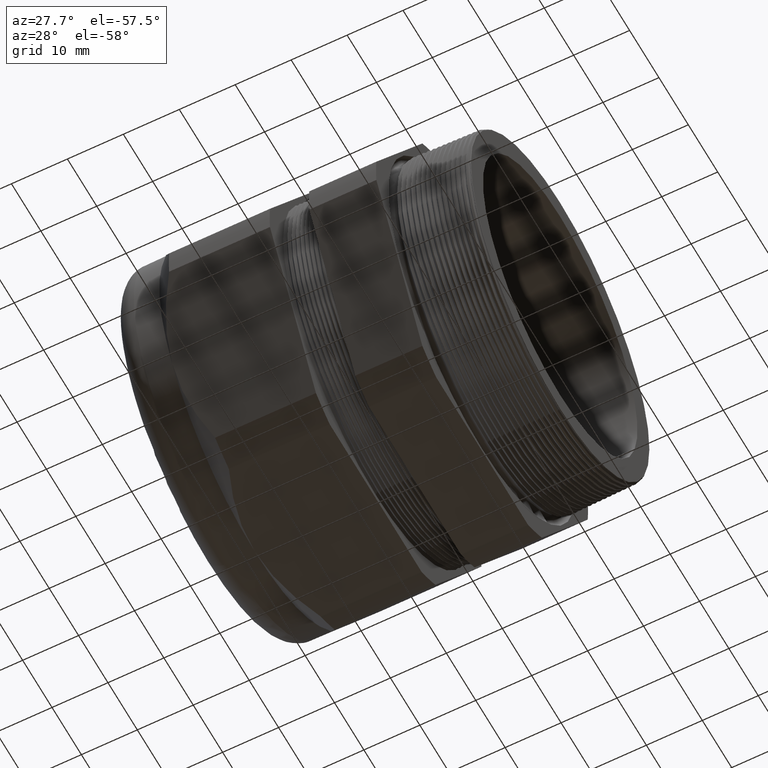
[diagram: clean part render]
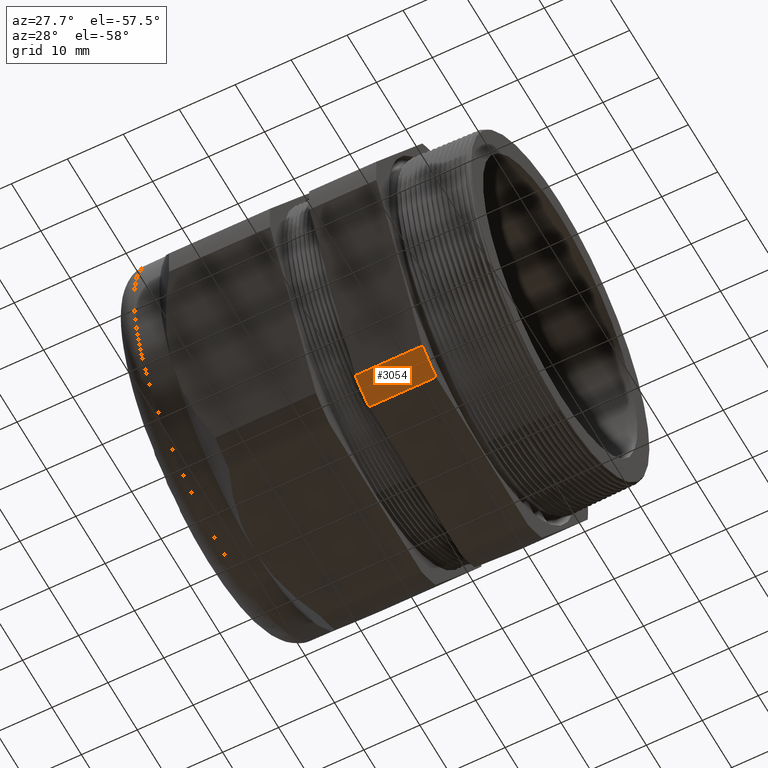
[diagram: same view with one face highlighted and labeled with its STEP entity id]
A machine part, auxiliary view. The second image highlights one B-rep face of the part: STEP entity #3054.
In plain terms, the highlighted cylindrical surface (partial cylindrical patch) has radius 36.0883 mm, axis along (-1, 0, 0).
Its self-contained STEP definition (entity closure, byte-faithful):
#191 = CARTESIAN_POINT ( 'NONE',  ( -0.3100000000000000000, -0.6166625008868302800, -1.280000000000000000 ) ) ;
#192 = DIRECTION ( 'NONE',  ( 0.0000000000000000000, 0.0000000000000000000, -1.000000000000000000 ) ) ;
#193 = DIRECTION ( 'NONE',  ( 1.000000000000000000, 0.0000000000000000000, 0.0000000000000000000 ) ) ;
#194 = CARTESIAN_POINT ( 'NONE',  ( -0.3100000000000000000, 0.0000000000000000000, 0.0000000000000000000 ) ) ;
#195 = AXIS2_PLACEMENT_3D ( 'NONE', #194, #193, #192 ) ;
#196 = CIRCLE ( 'NONE', #195, 1.420800000000000100 ) ;
#197 = CARTESIAN_POINT ( 'NONE',  ( -0.3100000000000000000, -0.8001812664006657800, -1.174045391329239500 ) ) ;
#458 = FACE_OUTER_BOUND ( 'NONE', #3055, .T. ) ;
#463 = CARTESIAN_POINT ( 'NONE',  ( -0.7824400000000001400, -0.6166625008868302800, -1.280000000000000000 ) ) ;
#464 = DIRECTION ( 'NONE',  ( -1.000000000000000000, 0.0000000000000000000, 0.0000000000000000000 ) ) ;
#465 = VECTOR ( 'NONE', #464, 39.37007874015748100 ) ;
#466 = CARTESIAN_POINT ( 'NONE',  ( 0.2400000000000001900, -0.6166625008868302800, -1.280000000000000000 ) ) ;
#467 = LINE ( 'NONE', #466, #465 ) ;
#518 = DIRECTION ( 'NONE',  ( 0.0000000000000000000, 0.0000000000000000000, 1.000000000000000000 ) ) ;
#519 = DIRECTION ( 'NONE',  ( -1.000000000000000000, 0.0000000000000000000, 0.0000000000000000000 ) ) ;
#520 = CARTESIAN_POINT ( 'NONE',  ( 0.2400000000000001900, 0.0000000000000000000, 0.0000000000000000000 ) ) ;
#521 = AXIS2_PLACEMENT_3D ( 'NONE', #520, #519, #518 ) ;
#522 = CYLINDRICAL_SURFACE ( 'NONE', #521, 1.420800000000000100 ) ;
#567 = DIRECTION ( 'NONE',  ( 0.0000000000000000000, 0.0000000000000000000, 1.000000000000000000 ) ) ;
#568 = DIRECTION ( 'NONE',  ( -1.000000000000000000, 0.0000000000000000000, 0.0000000000000000000 ) ) ;
#569 = CARTESIAN_POINT ( 'NONE',  ( -0.7824400000000001400, 0.0000000000000000000, 0.0000000000000000000 ) ) ;
#570 = AXIS2_PLACEMENT_3D ( 'NONE', #569, #568, #567 ) ;
#571 = CIRCLE ( 'NONE', #570, 1.420800000000000100 ) ;
#572 = CARTESIAN_POINT ( 'NONE',  ( -0.7824400000000001400, -0.8001812664006657800, -1.174045391329239500 ) ) ;
#2083 = EDGE_CURVE ( 'NONE', #2893, #3100, #4251, .T. ) ;
#2893 = VERTEX_POINT ( 'NONE', #197 ) ;
#2895 = EDGE_CURVE ( 'NONE', #2893, #2896, #196, .T. ) ;
#2896 = VERTEX_POINT ( 'NONE', #191 ) ;
#3050 = EDGE_CURVE ( 'NONE', #2896, #3051, #467, .T. ) ;
#3051 = VERTEX_POINT ( 'NONE', #463 ) ;
#3054 = ADVANCED_FACE ( 'NONE', ( #458 ), #522, .T. ) ;
#3055 = EDGE_LOOP ( 'NONE', ( #3057, #3058, #3059, #3102 ) ) ;
#3057 = ORIENTED_EDGE ( 'NONE', *, *, #3050, .F. ) ;
#3058 = ORIENTED_EDGE ( 'NONE', *, *, #2895, .F. ) ;
#3059 = ORIENTED_EDGE ( 'NONE', *, *, #2083, .T. ) ;
#3100 = VERTEX_POINT ( 'NONE', #572 ) ;
#3102 = ORIENTED_EDGE ( 'NONE', *, *, #3103, .F. ) ;
#3103 = EDGE_CURVE ( 'NONE', #3051, #3100, #571, .T. ) ;
#4248 = DIRECTION ( 'NONE',  ( -1.000000000000000000, 0.0000000000000000000, 0.0000000000000000000 ) ) ;
#4249 = VECTOR ( 'NONE', #4248, 39.37007874015748100 ) ;
#4250 = CARTESIAN_POINT ( 'NONE',  ( 0.2400000000000001900, -0.8001812664006657800, -1.174045391329239500 ) ) ;
#4251 = LINE ( 'NONE', #4250, #4249 ) ;